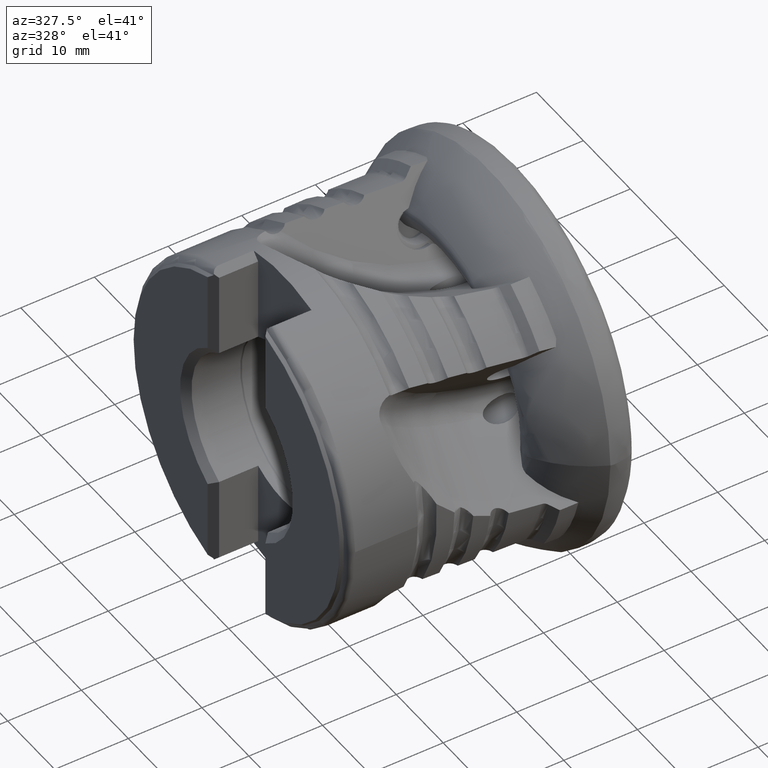
[diagram: clean part render]
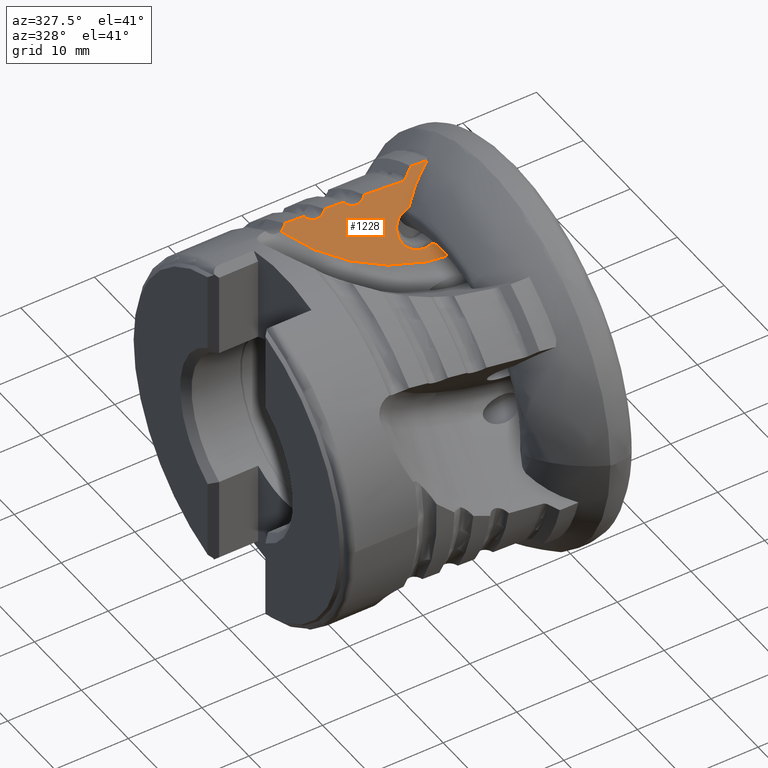
[diagram: same view with one face highlighted and labeled with its STEP entity id]
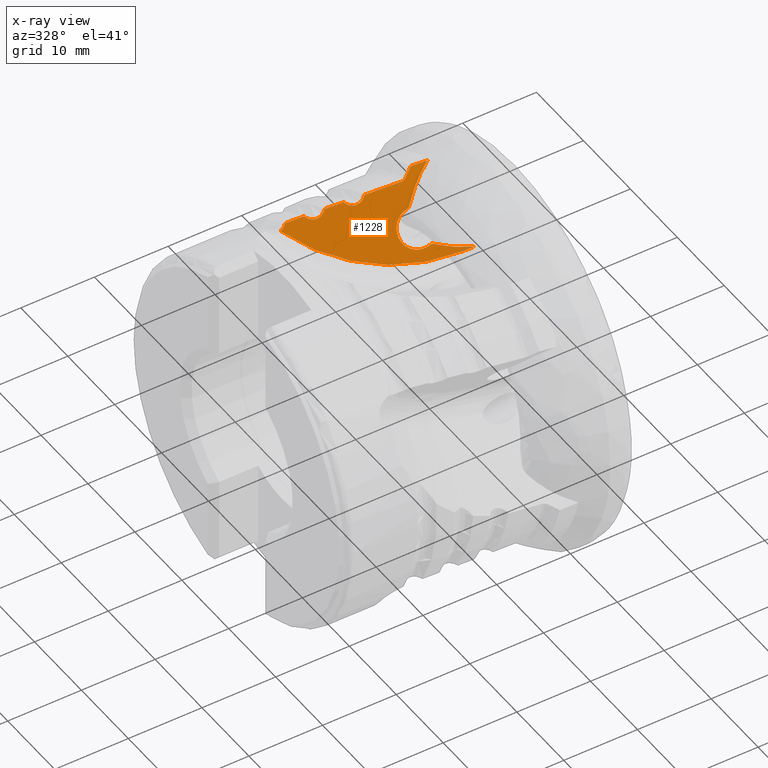
[diagram: x-ray of the same camera — body ghosted, the highlighted face saturated]
A machine part, auxiliary view. The second image highlights one B-rep face of the part: STEP entity #1228.
The next image is the same camera in x-ray: the body ghosted, the highlighted face saturated — about 0% of this face is hidden behind the body in this view.
In plain terms, the highlighted planar face has unit normal (-0.1219, -0.803, 0.5834).
Its self-contained STEP definition (entity closure, byte-faithful):
#899 = VERTEX_POINT ( 'NONE', #5054 ) ;
#944 = VERTEX_POINT ( 'NONE', #11757 ) ;
#961 = VERTEX_POINT ( 'NONE', #11116 ) ;
#1026 = VERTEX_POINT ( 'NONE', #10910 ) ;
#1043 = VERTEX_POINT ( 'NONE', #10954 ) ;
#1075 = VERTEX_POINT ( 'NONE', #10889 ) ;
#1116 = VERTEX_POINT ( 'NONE', #11035 ) ;
#1228 = ADVANCED_FACE ( 'NONE', ( #7901 ), #7381, .T. ) ;
#1806 = CARTESIAN_POINT ( 'NONE',  ( -7.421629959173416500, 1.260420169626533100, 13.82855037704761400 ) ) ;
#1810 = DIRECTION ( 'NONE',  ( 0.9925461516413219800, -0.09859436990808009800, 0.07163300276011369500 ) ) ;
#2289 = CARTESIAN_POINT ( 'NONE',  ( -26.88086292100180300, 9.101879736682789700, 20.55648487404870300 ) ) ;
#2294 = CARTESIAN_POINT ( 'NONE',  ( -26.60585329427046400, 9.207424961258492900, 20.75920315620091800 ) ) ;
#2295 = CARTESIAN_POINT ( 'NONE',  ( -26.49104101026542000, 9.276088678402196300, 20.87769420318175100 ) ) ;
#2296 = CARTESIAN_POINT ( 'NONE',  ( -26.40192378864668400, 9.358621703955291700, 21.00990718214282900 ) ) ;
#3840 = CARTESIAN_POINT ( 'NONE',  ( -7.421629959172985700, 15.95505147693850000, 34.05397523642120900 ) ) ;
#3841 = DIRECTION ( 'NONE',  ( 0.1218693434051475500, 0.8029867043792782200, -0.5834039901544247900 ) ) ;
#3842 = DIRECTION ( 'NONE',  ( 0.0000000000000000000, 0.5877852522924801300, 0.8090169943749423400 ) ) ;
#4102 = CARTESIAN_POINT ( 'NONE',  ( -22.70096189432291600, 8.478303586025454300, 20.57136039019268700 ) ) ;
#4117 = CARTESIAN_POINT ( 'NONE',  ( -27.20535320009968300, 9.050671897020617300, 20.41821939588086500 ) ) ;
#4126 = CARTESIAN_POINT ( 'NONE',  ( -22.56953039307329700, 8.462952821686220900, 20.57768707145622100 ) ) ;
#4135 = CARTESIAN_POINT ( 'NONE',  ( -22.44058233842041600, 8.458151449756426700, 20.59801496967367700 ) ) ;
#4137 = CARTESIAN_POINT ( 'NONE',  ( -22.18760150880242700, 8.469428242544362100, 20.66638221252682700 ) ) ;
#4139 = CARTESIAN_POINT ( 'NONE',  ( -22.06429409048755400, 8.485884921132260700, 20.71479101446845000 ) ) ;
#4140 = CARTESIAN_POINT ( 'NONE',  ( -21.83796603354345900, 8.538453249294855500, 20.83442358719301200 ) ) ;
#4142 = CARTESIAN_POINT ( 'NONE',  ( -21.73181507534316000, 8.575372445524831000, 20.90741275422882600 ) ) ;
#4144 = CARTESIAN_POINT ( 'NONE',  ( -21.54752260003392500, 8.665446627896102400, 21.06988674380047400 ) ) ;
#4146 = CARTESIAN_POINT ( 'NONE',  ( -21.46749699151268600, 8.719118062810743200, 21.16047597167583700 ) ) ;
#4148 = CARTESIAN_POINT ( 'NONE',  ( -21.40192378864668000, 8.780135207597238500, 21.25815668717096000 ) ) ;
#4174 = CARTESIAN_POINT ( 'NONE',  ( -17.56943671104038900, 7.873209564492991100, 20.81046254396222000 ) ) ;
#4175 = CARTESIAN_POINT ( 'NONE',  ( -17.70096189432298300, 7.888859605443304400, 20.80452821204090000 ) ) ;
#4185 = CARTESIAN_POINT ( 'NONE',  ( -17.44023686358680400, 7.868202317690850700, 20.83055967762503300 ) ) ;
#4186 = CARTESIAN_POINT ( 'NONE',  ( -17.18707387554041000, 7.879284629128449100, 20.89869729158848000 ) ) ;
#4188 = CARTESIAN_POINT ( 'NONE',  ( -17.06359201179057500, 7.895764069436753000, 20.94717386288057900 ) ) ;
#4190 = CARTESIAN_POINT ( 'NONE',  ( -16.83721083005975000, 7.948536292669351700, 21.06709817051964300 ) ) ;
#4192 = CARTESIAN_POINT ( 'NONE',  ( -16.73114257891439000, 7.985633269273453300, 21.14031475427607600 ) ) ;
#4194 = CARTESIAN_POINT ( 'NONE',  ( -16.54713126184665800, 8.076093591701171800, 21.30326148789083300 ) ) ;
#4196 = CARTESIAN_POINT ( 'NONE',  ( -16.46729234744742600, 8.129989387928324300, 21.39412052341837300 ) ) ;
#4198 = CARTESIAN_POINT ( 'NONE',  ( -16.40192378864668000, 8.191161792618716600, 21.49197218700841500 ) ) ;
#4223 = CARTESIAN_POINT ( 'NONE',  ( -27.03616647889724000, 9.066852085031794000, 20.47583153265122000 ) ) ;
#4671 = VERTEX_POINT ( 'NONE', #10390 ) ;
#4675 = VERTEX_POINT ( 'NONE', #10394 ) ;
#4677 = VERTEX_POINT ( 'NONE', #10396 ) ;
#4679 = VERTEX_POINT ( 'NONE', #10398 ) ;
#4697 = VERTEX_POINT ( 'NONE', #10414 ) ;
#4723 = VERTEX_POINT ( 'NONE', #10423 ) ;
#4805 = EDGE_LOOP ( 'NONE', ( #9217, #9209, #9201, #9172, #9173, #9194, #9186, #9160, #9266, #9258, #9250, #9242, #9234, #9226, #9218, #9210, #9202, #9175, #9176 ) ) ;
#5054 = CARTESIAN_POINT ( 'NONE',  ( -21.40192378864668000, 8.780135207597238500, 21.25815668717096000 ) ) ;
#5202 = CARTESIAN_POINT ( 'NONE',  ( -11.68050196376747600, 4.306099504520001500, 17.13091736354314400 ) ) ;
#5204 = DIRECTION ( 'NONE',  ( 0.1218693434051475600, 0.8029867043792781000, -0.5834039901544246800 ) ) ;
#5206 = DIRECTION ( 'NONE',  ( 0.0000000000000000000, -0.5877852522924801300, -0.8090169943749423400 ) ) ;
#5933 = CARTESIAN_POINT ( 'NONE',  ( -10.04800000000000200, 8.222153676493809000, 22.86192269189359600 ) ) ;
#5936 = CARTESIAN_POINT ( 'NONE',  ( -9.345700096685984400, 8.137646911723155800, 22.89231504410350100 ) ) ;
#5945 = CARTESIAN_POINT ( 'NONE',  ( -8.644543693545207600, 8.052972934295837600, 22.92223837800016300 ) ) ;
#5946 = CARTESIAN_POINT ( 'NONE',  ( -7.944552345641181300, 7.968134347272951800, 22.95169177367560600 ) ) ;
#5953 = CARTESIAN_POINT ( 'NONE',  ( -6.354181319026387200, 1.233916757613804800, 14.01505471925777400 ) ) ;
#5965 = CARTESIAN_POINT ( 'NONE',  ( -5.884376455679301900, 1.107717405815141300, 13.93949542910055000 ) ) ;
#5973 = CARTESIAN_POINT ( 'NONE',  ( -8.011816977434623500, 1.722190300164511100, 14.34083616175854700 ) ) ;
#5975 = CARTESIAN_POINT ( 'NONE',  ( -9.564487256342081500, 2.336964095455484900, 14.86265685812320200 ) ) ;
#5977 = CARTESIAN_POINT ( 'NONE',  ( -10.61451153582215000, 2.836721908429433700, 15.33117115411849300 ) ) ;
#5980 = CARTESIAN_POINT ( 'NONE',  ( -12.23024661064924100, 5.793654047923676700, 19.06352241983993800 ) ) ;
#5989 = CARTESIAN_POINT ( 'NONE',  ( -11.20430348530188200, 6.355363569396873300, 20.05096217384444700 ) ) ;
#5993 = DIRECTION ( 'NONE',  ( 0.9724876384861677000, 0.02096971871375574000, 0.2320087582154230500 ) ) ;
#5998 = CARTESIAN_POINT ( 'NONE',  ( -11.88917067142105700, 5.801008657095651200, 19.14489374219491700 ) ) ;
#6009 = CARTESIAN_POINT ( 'NONE',  ( -9.970519840657143400, 7.136422390700596800, 21.38372688687990600 ) ) ;
#6011 = CARTESIAN_POINT ( 'NONE',  ( -8.495542923333070800, 7.765107236639895700, 22.55715053933867200 ) ) ;
#6013 = CARTESIAN_POINT ( 'NONE',  ( -7.944552345641181300, 7.968134347272951800, 22.95169177367560600 ) ) ;
#6154 = CARTESIAN_POINT ( 'NONE',  ( -11.05060678118654000, 7.728699845118581100, 21.97330364799771000 ) ) ;
#6162 = CARTESIAN_POINT ( 'NONE',  ( -10.71650797145339400, 7.893256048102226300, 22.26958692444199900 ) ) ;
#6163 = CARTESIAN_POINT ( 'NONE',  ( -14.84822221529264800, 8.006492260778081500, 21.56235465355506500 ) ) ;
#6167 = CARTESIAN_POINT ( 'NONE',  ( -10.38230126676114300, 8.057737618508216600, 22.56579001651913100 ) ) ;
#6168 = CARTESIAN_POINT ( 'NONE',  ( -10.04800000000000200, 8.222153676493809000, 22.86192269189359600 ) ) ;
#6169 = CARTESIAN_POINT ( 'NONE',  ( -11.62648998454890900, 7.618647935264627700, 21.70153188957328200 ) ) ;
#6170 = CARTESIAN_POINT ( 'NONE',  ( -11.75771356237309500, 7.634508761077826800, 21.69595068156787600 ) ) ;
#6171 = CARTESIAN_POINT ( 'NONE',  ( -16.40192378864668000, 8.191161792618716600, 21.49197218700841500 ) ) ;
#6175 = CARTESIAN_POINT ( 'NONE',  ( -11.49640129681400300, 7.618798330662232700, 21.72891358173335900 ) ) ;
#6176 = CARTESIAN_POINT ( 'NONE',  ( -11.25426608153592400, 7.650994404252343500, 21.82380816535220100 ) ) ;
#6177 = CARTESIAN_POINT ( 'NONE',  ( -11.14349620313931600, 7.682948318537469800, 21.89092807082752800 ) ) ;
#6178 = CARTESIAN_POINT ( 'NONE',  ( -11.05060678118654000, 7.728699845118581100, 21.97330364799771000 ) ) ;
#6179 = CARTESIAN_POINT ( 'NONE',  ( -20.59997588378951500, 8.686516575447520000, 21.29682345684064200 ) ) ;
#6180 = CARTESIAN_POINT ( 'NONE',  ( -13.30006641954016700, 7.820930975862977700, 21.63035124999994700 ) ) ;
#6181 = CARTESIAN_POINT ( 'NONE',  ( -11.75771356237309500, 7.634508761077826800, 21.69595068156787600 ) ) ;
#6182 = CARTESIAN_POINT ( 'NONE',  ( -18.93471225157287900, 8.422237864971263500, 21.28093788618185700 ) ) ;
#6183 = CARTESIAN_POINT ( 'NONE',  ( -18.99999999999999600, 8.498523266980894800, 21.37229754332893700 ) ) ;
#6184 = CARTESIAN_POINT ( 'NONE',  ( -21.40192378864668000, 8.780135207597238500, 21.25815668717096000 ) ) ;
#6188 = CARTESIAN_POINT ( 'NONE',  ( -18.85626258899750600, 8.350858127577556200, 21.19907973638041600 ) ) ;
#6189 = CARTESIAN_POINT ( 'NONE',  ( -18.67365771698320700, 8.217679538234412100, 21.05392011778892300 ) ) ;
#6190 = CARTESIAN_POINT ( 'NONE',  ( -18.56893704800704400, 8.156024877284531600, 20.99093523174630200 ) ) ;
#6191 = CARTESIAN_POINT ( 'NONE',  ( -18.34435603188195400, 8.049774059409822200, 20.89160705764338700 ) ) ;
#6192 = CARTESIAN_POINT ( 'NONE',  ( -18.22119601592127600, 8.003620372306851700, 20.85380929280973600 ) ) ;
#6193 = CARTESIAN_POINT ( 'NONE',  ( -17.96661202404275000, 7.931319519293822400, 20.80747666531795700 ) ) ;
#6194 = CARTESIAN_POINT ( 'NONE',  ( -17.83571381924880900, 7.904893592932138400, 20.79844829160594000 ) ) ;
#6195 = CARTESIAN_POINT ( 'NONE',  ( -17.70096189432298300, 7.888859605443304400, 20.80452821204090000 ) ) ;
#6196 = CARTESIAN_POINT ( 'NONE',  ( -25.60013612336627600, 9.266687127547898600, 21.05085838267176300 ) ) ;
#6197 = CARTESIAN_POINT ( 'NONE',  ( -19.79932297506166300, 8.592644563166063100, 21.33487096231085900 ) ) ;
#6198 = CARTESIAN_POINT ( 'NONE',  ( -18.99999999999999600, 8.498523266980894800, 21.37229754332893700 ) ) ;
#6199 = CARTESIAN_POINT ( 'NONE',  ( -23.93451666037526600, 9.006097899342419700, 21.04012527946783700 ) ) ;
#6200 = CARTESIAN_POINT ( 'NONE',  ( -23.99999999999999600, 9.082021530217623700, 21.13094614362223600 ) ) ;
#6201 = CARTESIAN_POINT ( 'NONE',  ( -26.40192378864668400, 9.358621703955291700, 21.00990718214282900 ) ) ;
#6205 = CARTESIAN_POINT ( 'NONE',  ( -23.85583053481497000, 8.935146123883662000, 20.95890556433388200 ) ) ;
#6206 = CARTESIAN_POINT ( 'NONE',  ( -23.67275999916749600, 8.802919936194022900, 20.81515408829897100 ) ) ;
#6207 = CARTESIAN_POINT ( 'NONE',  ( -23.56787982290137500, 8.741837361613328000, 20.75298993163939100 ) ) ;
#6208 = CARTESIAN_POINT ( 'NONE',  ( -23.34314748469399000, 8.636718845870165100, 20.65525184792914400 ) ) ;
#6209 = CARTESIAN_POINT ( 'NONE',  ( -23.21999165526135300, 8.591153507847892000, 20.61826300159429700 ) ) ;
#6210 = CARTESIAN_POINT ( 'NONE',  ( -22.96593305830971200, 8.519965122938121000, 20.57335180346396100 ) ) ;
#6211 = CARTESIAN_POINT ( 'NONE',  ( -22.83523175398399000, 8.493985861232841800, 20.56489707966741800 ) ) ;
#6212 = CARTESIAN_POINT ( 'NONE',  ( -22.70096189432291600, 8.478303586025454300, 20.57136039019268700 ) ) ;
#6215 = CARTESIAN_POINT ( 'NONE',  ( -24.79948336288492100, 9.174485745597531100, 21.09120528255773800 ) ) ;
#6216 = CARTESIAN_POINT ( 'NONE',  ( -23.99999999999999600, 9.082021530217623700, 21.13094614362223600 ) ) ;
#6224 = CARTESIAN_POINT ( 'NONE',  ( -10.61451153582215000, 2.836721908429433700, 15.33117115411849300 ) ) ;
#6225 = DIRECTION ( 'NONE',  ( -0.9678806467882188300, -0.03407895263724990100, -0.2490896998271249200 ) ) ;
#6226 = CARTESIAN_POINT ( 'NONE',  ( -11.68050196376747600, 4.306099504520001500, 17.13091736354314400 ) ) ;
#6227 = DIRECTION ( 'NONE',  ( 0.1218693434051475600, 0.8029867043792781000, -0.5834039901544246800 ) ) ;
#6228 = DIRECTION ( 'NONE',  ( 0.0000000000000000000, -0.5877852522924801300, -0.8090169943749423400 ) ) ;
#6736 = AXIS2_PLACEMENT_3D ( 'NONE', #7436, #7369, #7391 ) ;
#7013 = AXIS2_PLACEMENT_3D ( 'NONE', #3840, #3841, #3842 ) ;
#7114 = AXIS2_PLACEMENT_3D ( 'NONE', #5202, #5204, #5206 ) ;
#7161 = AXIS2_PLACEMENT_3D ( 'NONE', #6226, #6227, #6228 ) ;
#7246 = B_SPLINE_CURVE_WITH_KNOTS ( 'NONE', 3,
 ( #4102, #4126, #4135, #4137, #4139, #4140, #4142, #4144, #4146, #4148 ),
 .UNSPECIFIED., .F., .F.,
 ( 4, 2, 2, 2, 4 ),
 ( 0.001601054630312986700, 0.001992757315340473700, 0.002384460000367960600, 0.002776162685395447400, 0.003167865370422934700 ),
 .UNSPECIFIED. ) ;
#7287 = B_SPLINE_CURVE_WITH_KNOTS ( 'NONE', 3,
 ( #4117, #4223, #2289, #2294, #2295, #2296 ),
 .UNSPECIFIED., .F., .F.,
 ( 4, 2, 4 ),
 ( 0.002100690579708206000, 0.002631354509134551600, 0.003162018438560897200 ),
 .UNSPECIFIED. ) ;
#7340 = B_SPLINE_CURVE_WITH_KNOTS ( 'NONE', 3,
 ( #4175, #4174, #4185, #4186, #4188, #4190, #4192, #4194, #4196, #4198 ),
 .UNSPECIFIED., .F., .F.,
 ( 4, 2, 2, 2, 4 ),
 ( 0.001606731525050874000, 0.001998695709722526800, 0.002390659894394179200, 0.002782624079065832000, 0.003174588263737484900 ),
 .UNSPECIFIED. ) ;
#7369 = DIRECTION ( 'NONE',  ( -0.1218693434051475500, -0.8029867043792782200, 0.5834039901544246800 ) ) ;
#7381 = PLANE ( 'NONE',  #6736 ) ;
#7391 = DIRECTION ( 'NONE',  ( 0.0000000000000000000, -0.5877852522924801300, -0.8090169943749424600 ) ) ;
#7436 = CARTESIAN_POINT ( 'NONE',  ( -7.421629959173418300, 10.66498420630621000, 26.77282228704668700 ) ) ;
#7563 = VERTEX_POINT ( 'NONE', #10716 ) ;
#7901 = FACE_OUTER_BOUND ( 'NONE', #4805, .T. ) ;
#8445 = LINE ( 'NONE', #1806, #8446 ) ;
#8446 = VECTOR ( 'NONE', #1810, 1000.000000000000100 ) ;
#8527 = CIRCLE ( 'NONE', #7013, 25.00000000000000000 ) ;
#8700 = CIRCLE ( 'NONE', #7114, 2.499999999999998700 ) ;
#8891 = CARTESIAN_POINT ( 'NONE',  ( -23.99999999999999600, 9.082021530217623700, 21.13094614362223600 ) ) ;
#8932 = CARTESIAN_POINT ( 'NONE',  ( -18.99999999999999600, 8.498523266980894800, 21.37229754332893700 ) ) ;
#8962 = CARTESIAN_POINT ( 'NONE',  ( -11.75771356237309500, 7.634508761077826800, 21.69595068156787600 ) ) ;
#8967 = CARTESIAN_POINT ( 'NONE',  ( -11.05060678118654000, 7.728699845118581100, 21.97330364799771000 ) ) ;
#8980 = CARTESIAN_POINT ( 'NONE',  ( -7.421629959173416500, 1.260420169626533100, 13.82855037704761400 ) ) ;
#9160 = ORIENTED_EDGE ( 'NONE', *, *, #10177, .T. ) ;
#9172 = ORIENTED_EDGE ( 'NONE', *, *, #10217, .T. ) ;
#9173 = ORIENTED_EDGE ( 'NONE', *, *, #10052, .T. ) ;
#9175 = ORIENTED_EDGE ( 'NONE', *, *, #10215, .F. ) ;
#9176 = ORIENTED_EDGE ( 'NONE', *, *, #9722, .F. ) ;
#9186 = ORIENTED_EDGE ( 'NONE', *, *, #10174, .T. ) ;
#9194 = ORIENTED_EDGE ( 'NONE', *, *, #10218, .T. ) ;
#9201 = ORIENTED_EDGE ( 'NONE', *, *, #10171, .T. ) ;
#9202 = ORIENTED_EDGE ( 'NONE', *, *, #10214, .F. ) ;
#9209 = ORIENTED_EDGE ( 'NONE', *, *, #9559, .T. ) ;
#9210 = ORIENTED_EDGE ( 'NONE', *, *, #9713, .F. ) ;
#9217 = ORIENTED_EDGE ( 'NONE', *, *, #9662, .F. ) ;
#9218 = ORIENTED_EDGE ( 'NONE', *, *, #10212, .F. ) ;
#9226 = ORIENTED_EDGE ( 'NONE', *, *, #10211, .F. ) ;
#9234 = ORIENTED_EDGE ( 'NONE', *, *, #9717, .F. ) ;
#9242 = ORIENTED_EDGE ( 'NONE', *, *, #10209, .F. ) ;
#9250 = ORIENTED_EDGE ( 'NONE', *, *, #10208, .F. ) ;
#9258 = ORIENTED_EDGE ( 'NONE', *, *, #10206, .F. ) ;
#9266 = ORIENTED_EDGE ( 'NONE', *, *, #10168, .F. ) ;
#9559 = EDGE_CURVE ( 'NONE', #11290, #4679, #8445, .T. ) ;
#9662 = EDGE_CURVE ( 'NONE', #11290, #7563, #8527, .T. ) ;
#9713 = EDGE_CURVE ( 'NONE', #1075, #899, #7246, .T. ) ;
#9717 = EDGE_CURVE ( 'NONE', #1026, #1116, #7340, .T. ) ;
#9722 = EDGE_CURVE ( 'NONE', #7563, #1043, #7287, .T. ) ;
#10052 = EDGE_CURVE ( 'NONE', #961, #944, #8700, .T. ) ;
#10168 = EDGE_CURVE ( 'NONE', #4671, #4723, #12988, .T. ) ;
#10171 = EDGE_CURVE ( 'NONE', #4679, #4677, #13027, .T. ) ;
#10174 = EDGE_CURVE ( 'NONE', #4675, #4697, #12060, .T. ) ;
#10177 = EDGE_CURVE ( 'NONE', #4697, #4723, #13023, .T. ) ;
#10206 = EDGE_CURVE ( 'NONE', #11277, #4671, #13015, .T. ) ;
#10208 = EDGE_CURVE ( 'NONE', #11272, #11277, #13005, .T. ) ;
#10209 = EDGE_CURVE ( 'NONE', #1116, #11272, #13025, .T. ) ;
#10211 = EDGE_CURVE ( 'NONE', #11242, #1026, #12993, .T. ) ;
#10212 = EDGE_CURVE ( 'NONE', #899, #11242, #13019, .T. ) ;
#10214 = EDGE_CURVE ( 'NONE', #11198, #1075, #12995, .T. ) ;
#10215 = EDGE_CURVE ( 'NONE', #1043, #11198, #12998, .T. ) ;
#10217 = EDGE_CURVE ( 'NONE', #4677, #961, #12095, .T. ) ;
#10218 = EDGE_CURVE ( 'NONE', #944, #4675, #12094, .T. ) ;
#10390 = CARTESIAN_POINT ( 'NONE',  ( -10.04800000000000200, 8.222153676493809000, 22.86192269189359600 ) ) ;
#10394 = CARTESIAN_POINT ( 'NONE',  ( -12.23024661064924100, 5.793654047923675800, 19.06352241983993800 ) ) ;
#10396 = CARTESIAN_POINT ( 'NONE',  ( -10.61451153582215000, 2.836721908429433700, 15.33117115411849300 ) ) ;
#10398 = CARTESIAN_POINT ( 'NONE',  ( -5.884376455679301900, 1.107717405815141300, 13.93949542910055000 ) ) ;
#10414 = CARTESIAN_POINT ( 'NONE',  ( -11.88917067142105700, 5.801008657095651200, 19.14489374219491700 ) ) ;
#10423 = CARTESIAN_POINT ( 'NONE',  ( -7.944552345641181300, 7.968134347272951800, 22.95169177367560600 ) ) ;
#10716 = CARTESIAN_POINT ( 'NONE',  ( -27.20535320009968300, 9.050671897020617300, 20.41821939588086500 ) ) ;
#10889 = CARTESIAN_POINT ( 'NONE',  ( -22.70096189432291600, 8.478303586025454300, 20.57136039019268700 ) ) ;
#10910 = CARTESIAN_POINT ( 'NONE',  ( -17.70096189432298300, 7.888859605443304400, 20.80452821204090000 ) ) ;
#10954 = CARTESIAN_POINT ( 'NONE',  ( -26.40192378864668400, 9.358621703955291700, 21.00990718214282900 ) ) ;
#11035 = CARTESIAN_POINT ( 'NONE',  ( -16.40192378864668000, 8.191161792618716600, 21.49197218700841500 ) ) ;
#11116 = CARTESIAN_POINT ( 'NONE',  ( -11.13075731016298200, 2.818544961353034200, 15.19831230897648800 ) ) ;
#11198 = VERTEX_POINT ( 'NONE', #8891 ) ;
#11242 = VERTEX_POINT ( 'NONE', #8932 ) ;
#11272 = VERTEX_POINT ( 'NONE', #8962 ) ;
#11277 = VERTEX_POINT ( 'NONE', #8967 ) ;
#11290 = VERTEX_POINT ( 'NONE', #8980 ) ;
#11757 = CARTESIAN_POINT ( 'NONE',  ( -11.68050196376747600, 2.836636373788802100, 15.10837487760578700 ) ) ;
#12060 = LINE ( 'NONE', #5980, #12066 ) ;
#12066 = VECTOR ( 'NONE', #5993, 1000.000000000000100 ) ;
#12094 = CIRCLE ( 'NONE', #7161, 2.499999999999998700 ) ;
#12095 = LINE ( 'NONE', #6224, #12097 ) ;
#12097 = VECTOR ( 'NONE', #6225, 1000.000000000000000 ) ;
#12988 =( BOUNDED_CURVE ( )  B_SPLINE_CURVE ( 3, ( #5933, #5936, #5945, #5946 ),
 .UNSPECIFIED., .F., .F. ) 
 B_SPLINE_CURVE_WITH_KNOTS ( ( 4, 4 ),
 ( 4.995467108449133800, 5.006556245559907300 ),
 .UNSPECIFIED. ) 
 CURVE ( )  GEOMETRIC_REPRESENTATION_ITEM ( )  RATIONAL_B_SPLINE_CURVE ( ( 1.000000000000000000, 0.9999897526127639000, 0.9999897526127639000, 1.000000000000000000 ) ) 
 REPRESENTATION_ITEM ( '' )  );
#12993 = B_SPLINE_CURVE_WITH_KNOTS ( 'NONE', 3,
 ( #6183, #6182, #6188, #6189, #6190, #6191, #6192, #6193, #6194, #6195 ),
 .UNSPECIFIED., .F., .F.,
 ( 4, 2, 2, 2, 4 ),
 ( 4.101478587322935600E-007, 0.0004019904921567677200, 0.0008035708364548030800, 0.001205151180752838700, 0.001606731525050874000 ),
 .UNSPECIFIED. ) ;
#12995 = B_SPLINE_CURVE_WITH_KNOTS ( 'NONE', 3,
 ( #6200, #6199, #6205, #6206, #6207, #6208, #6209, #6210, #6211, #6212 ),
 .UNSPECIFIED., .F., .F.,
 ( 4, 2, 2, 2, 4 ),
 ( 4.074780713610697500E-007, 0.0004005692661317674300, 0.0008007310541921738100, 0.001200892842252580200, 0.001601054630312986700 ),
 .UNSPECIFIED. ) ;
#12998 =( BOUNDED_CURVE ( )  B_SPLINE_CURVE ( 3, ( #6201, #6196, #6215, #6216 ),
 .UNSPECIFIED., .F., .T. ) 
 B_SPLINE_CURVE_WITH_KNOTS ( ( 4, 4 ),
 ( 4.921653393716823600, 4.934780617293308000 ),
 .UNSPECIFIED. ) 
 CURVE ( )  GEOMETRIC_REPRESENTATION_ITEM ( )  RATIONAL_B_SPLINE_CURVE ( ( 1.000000000000000000, 0.9999856397183191100, 0.9999856397183191100, 1.000000000000000000 ) ) 
 REPRESENTATION_ITEM ( '' )  );
#13005 = B_SPLINE_CURVE_WITH_KNOTS ( 'NONE', 3,
 ( #6170, #6169, #6175, #6176, #6177, #6178 ),
 .UNSPECIFIED., .F., .F.,
 ( 4, 2, 4 ),
 ( 1.988231382621511400E-007, 0.0003915584306129128100, 0.0007829180380875634500 ),
 .UNSPECIFIED. ) ;
#13015 = B_SPLINE_CURVE_WITH_KNOTS ( 'NONE', 3,
 ( #6154, #6162, #6167, #6168 ),
 .UNSPECIFIED., .F., .F.,
 ( 4, 4 ),
 ( 2.848881296796231800E-007, 0.001427996640044105600 ),
 .UNSPECIFIED. ) ;
#13019 =( BOUNDED_CURVE ( )  B_SPLINE_CURVE ( 3, ( #6184, #6179, #6197, #6198 ),
 .UNSPECIFIED., .F., .T. ) 
 B_SPLINE_CURVE_WITH_KNOTS ( ( 4, 4 ),
 ( 4.949023958092425300, 4.962235538851028400 ),
 .UNSPECIFIED. ) 
 CURVE ( )  GEOMETRIC_REPRESENTATION_ITEM ( )  RATIONAL_B_SPLINE_CURVE ( ( 1.000000000000000000, 0.9999854545640476400, 0.9999854545640476400, 1.000000000000000000 ) ) 
 REPRESENTATION_ITEM ( '' )  );
#13023 = B_SPLINE_CURVE_WITH_KNOTS ( 'NONE', 3,
 ( #5998, #5989, #6009, #6011, #6013 ),
 .UNSPECIFIED., .F., .F.,
 ( 4, 1, 4 ),
 ( 0.05519483886072210100, 0.4362447497042282200, 0.6480517173313737900 ),
 .UNSPECIFIED. ) ;
#13025 =( BOUNDED_CURVE ( )  B_SPLINE_CURVE ( 3, ( #6171, #6163, #6180, #6181 ),
 .UNSPECIFIED., .F., .F. ) 
 B_SPLINE_CURVE_WITH_KNOTS ( ( 4, 4 ),
 ( 4.976576443692033900, 5.002353196649983700 ),
 .UNSPECIFIED. ) 
 CURVE ( )  GEOMETRIC_REPRESENTATION_ITEM ( )  RATIONAL_B_SPLINE_CURVE ( ( 1.000000000000000000, 0.9999446306837027600, 0.9999446306837027600, 1.000000000000000000 ) ) 
 REPRESENTATION_ITEM ( '' )  );
#13027 = B_SPLINE_CURVE_WITH_KNOTS ( 'NONE', 3,
 ( #5965, #5953, #5973, #5975, #5977 ),
 .UNSPECIFIED., .F., .F.,
 ( 4, 1, 4 ),
 ( 0.4666680696541565300, 0.6139253039956618100, 0.9923906243027744700 ),
 .UNSPECIFIED. ) ;